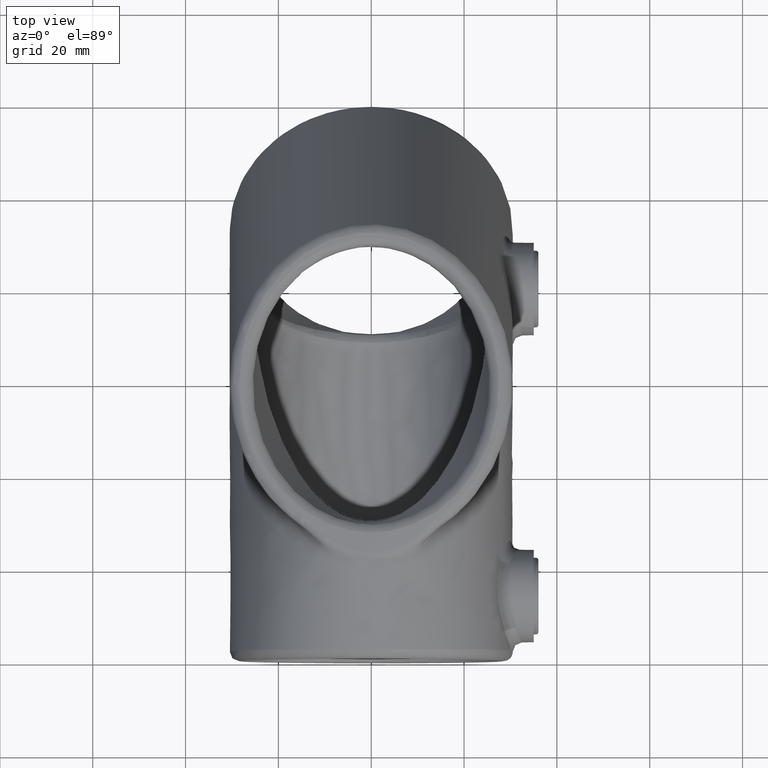
[diagram: clean part render]
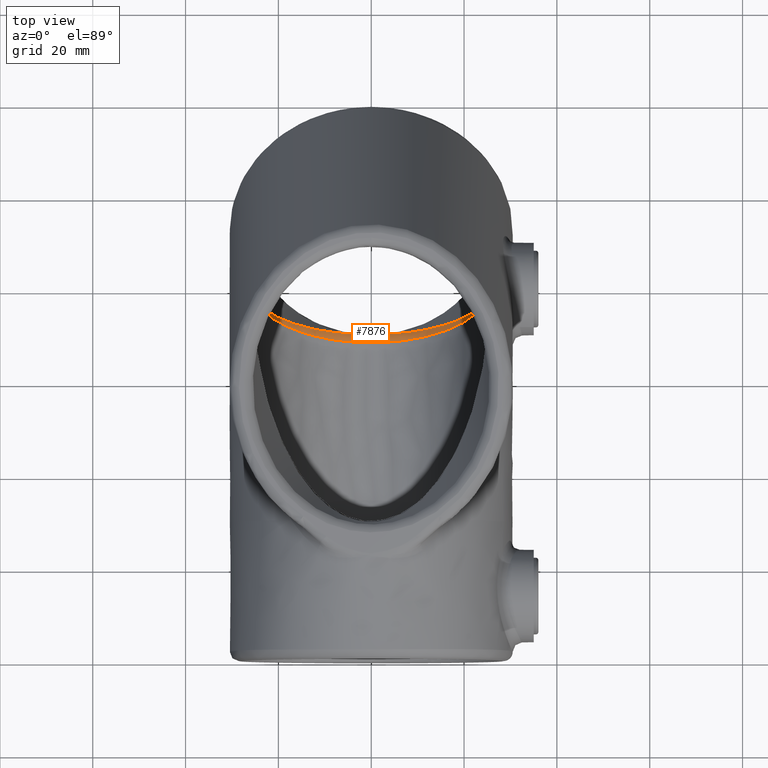
[diagram: same view with one face highlighted and labeled with its STEP entity id]
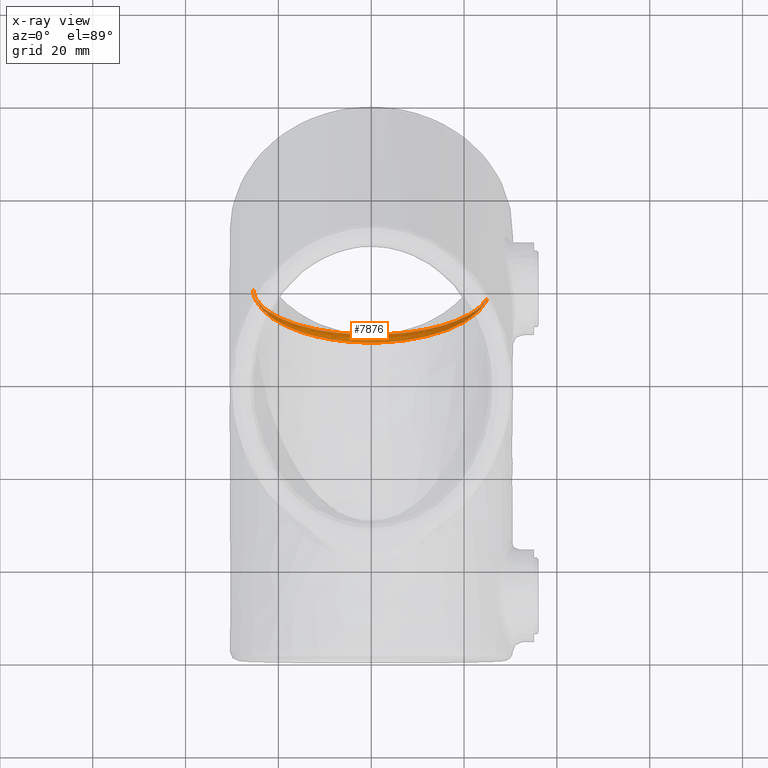
[diagram: x-ray of the same camera — body ghosted, the highlighted face saturated]
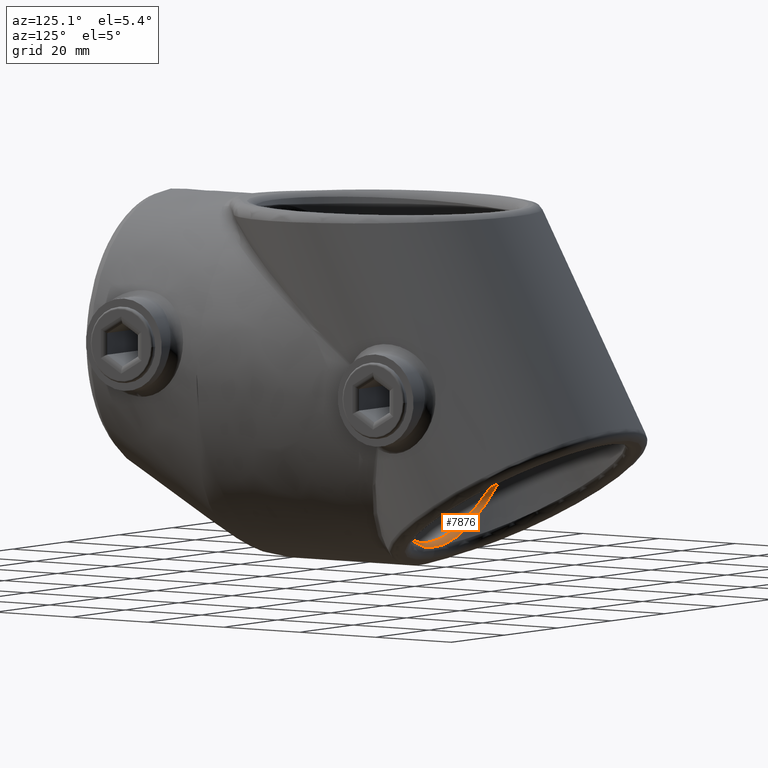
[diagram: same view with one face highlighted and labeled with its STEP entity id]
A machine part, top view. The second image highlights one B-rep face of the part: STEP entity #7876.
The next image is the same camera in x-ray: the body ghosted, the highlighted face saturated — about 6% of this face is hidden behind the body in this view.
A second angle (auxiliary view) of the same face is appended — the face is thin or edge-on in the first view.
In plain terms, the highlighted face is a freeform B-spline surface patch.
Its self-contained STEP definition (entity closure, byte-faithful):
#3 = CARTESIAN_POINT ( 'NONE',  ( 22.58121639640015488, 75.24018832099129384, -54.75525968631944096 ) ) ;
#14 = ORIENTED_EDGE ( 'NONE', *, *, #3636, .F. ) ;
#25 = CARTESIAN_POINT ( 'NONE',  ( -24.36436535150249583, 77.35913211490264985, -49.02889481556089635 ) ) ;
#56 = CARTESIAN_POINT ( 'NONE',  ( -24.38184807704450918, 77.10431051334707320, -48.95295193332019323 ) ) ;
#144 = CARTESIAN_POINT ( 'NONE',  ( -1.947169209758841113, 69.35995465113772696, -72.90505372227812586 ) ) ;
#153 = CARTESIAN_POINT ( 'NONE',  ( 0.6100246382884233487, 70.98978111656532519, -73.88626713952150737 ) ) ;
#175 = CARTESIAN_POINT ( 'NONE',  ( 6.675521697661412901, 71.37364669932598815, -72.78712857320317653 ) ) ;
#237 = CARTESIAN_POINT ( 'NONE',  ( 1.222344344010739325, 71.00395374831892070, -73.86503261217285399 ) ) ;
#262 = CARTESIAN_POINT ( 'NONE',  ( 22.89841451262963901, 76.20655320759085782, -54.38553463002921262 ) ) ;
#318 = CARTESIAN_POINT ( 'NONE',  ( 22.11504590576384999, 75.36577114824225987, -55.86472681183661848 ) ) ;
#322 = CARTESIAN_POINT ( 'NONE',  ( 23.14863449113720506, 76.39758286068226312, -53.66530873302413340 ) ) ;
#330 = CARTESIAN_POINT ( 'NONE',  ( 3.652023035714216270, 71.15436732206202919, -73.63651416379987324 ) ) ;
#351 = CARTESIAN_POINT ( 'NONE',  ( 17.20485221211358251, 73.00341594791015609, -64.04838910481251446 ) ) ;
#356 = CARTESIAN_POINT ( 'NONE',  ( -25.49999999999999645, 80.29829407782806072, -38.99999999999994316 ) ) ;
#361 = CARTESIAN_POINT ( 'NONE',  ( 24.90587214324878929, 77.96863304272331163, -46.26039285862093209 ) ) ;
#385 = CARTESIAN_POINT ( 'NONE',  ( 13.75194645250684999, 72.47820369677511110, -68.53515800741925545 ) ) ;
#414 = CARTESIAN_POINT ( 'NONE',  ( 17.31348103516615211, 72.28882902527541887, -63.91386295903275538 ) ) ;
#442 = CARTESIAN_POINT ( 'NONE',  ( 24.36861599355610153, 77.51550226748774719, -49.45516375577724943 ) ) ;
#477 = CARTESIAN_POINT ( 'NONE',  ( 2.968164713017211742, 69.39878908746389641, -72.78726015414369499 ) ) ;
#505 = CARTESIAN_POINT ( 'NONE',  ( 0.2701683234118203436, 70.47820838024550483, -73.01866182966917052 ) ) ;
#535 = CARTESIAN_POINT ( 'NONE',  ( -13.97484020293944873, 72.55261667835988248, -68.25131022408739057 ) ) ;
#566 = CARTESIAN_POINT ( 'NONE',  ( 8.845875741114355151, 71.06942923792198030, -70.88339112474533010 ) ) ;
#588 = CARTESIAN_POINT ( 'NONE',  ( -21.20653426436955158, 74.25602303656903302, -57.81434387777611050 ) ) ;
#596 = CARTESIAN_POINT ( 'NONE',  ( -10.96756580293044969, 71.94530800863633146, -70.58202024684642595 ) ) ;
#599 = CARTESIAN_POINT ( 'NONE',  ( -9.279989084185977788, 70.10189507112878005, -70.64526059665190871 ) ) ;
#624 = CARTESIAN_POINT ( 'NONE',  ( -5.623321931333479462, 69.57765207385848782, -72.24417434827853413 ) ) ;
#634 = CARTESIAN_POINT ( 'NONE',  ( -16.25493231877847577, 72.68773891115604613, -65.15299319028781611 ) ) ;
#659 = CARTESIAN_POINT ( 'NONE',  ( -18.48061508322096458, 72.76424318104858457, -62.44304037305183641 ) ) ;
#665 = CARTESIAN_POINT ( 'NONE',  ( -18.49734091706215722, 73.89158619260497574, -63.14391720063301960 ) ) ;
#670 = CARTESIAN_POINT ( 'NONE',  ( -24.60542226862977699, 77.84604415767738317, -48.21244688254019906 ) ) ;
#682 = CARTESIAN_POINT ( 'NONE',  ( 24.23022378654544084, 76.86450049158686681, -49.70003233663356923 ) ) ;
#694 = CARTESIAN_POINT ( 'NONE',  ( -23.28469828544911735, 75.82949940753640306, -52.92218614671244836 ) ) ;
#707 = CARTESIAN_POINT ( 'NONE',  ( -21.09467144445599374, 75.07771219020403919, -58.64856026612391560 ) ) ;
#741 = CARTESIAN_POINT ( 'NONE',  ( -23.11642347125272678, 76.07794826360931495, -53.41588255201841662 ) ) ;
#770 = CARTESIAN_POINT ( 'NONE',  ( -24.91300201651162993, 77.96369705506940306, -46.27582120535466004 ) ) ;
#926 = CARTESIAN_POINT ( 'NONE',  ( 9.488102775605041117, 71.71052817011643299, -71.48608127014323088 ) ) ;
#960 = ORIENTED_EDGE ( 'NONE', *, *, #3135, .F. ) ;
#981 = FACE_OUTER_BOUND ( 'NONE', #5347, .T. ) ;
#987 = CARTESIAN_POINT ( 'NONE',  ( 22.08933395456381632, 75.64070796388675433, -56.52034615322701683 ) ) ;
#1016 = CARTESIAN_POINT ( 'NONE',  ( 24.38746978340046567, 77.55290390689188484, -49.31469285928417179 ) ) ;
#1046 = CARTESIAN_POINT ( 'NONE',  ( 24.98827324766854119, 78.13453925128949606, -45.74346670718394847 ) ) ;
#1080 = CARTESIAN_POINT ( 'NONE',  ( 23.27355916427231364, 76.23874650187609348, -52.86540305033394560 ) ) ;
#1106 = CARTESIAN_POINT ( 'NONE',  ( 22.68043899571690147, 75.32832149020767076, -54.48105871817234913 ) ) ;
#1110 = CARTESIAN_POINT ( 'NONE',  ( 21.47446972008167165, 75.27414699323689717, -57.90524636522083313 ) ) ;
#1142 = CARTESIAN_POINT ( 'NONE',  ( 24.71512622740784337, 77.56260804437228273, -47.52552346080146606 ) ) ;
#1176 = CARTESIAN_POINT ( 'NONE',  ( 11.19556131808074362, 71.44815553485565829, -69.52975261503965498 ) ) ;
#1207 = CARTESIAN_POINT ( 'NONE',  ( -9.153354244819674079, 71.11738877731944797, -70.71184285386405577 ) ) ;
#1234 = CARTESIAN_POINT ( 'NONE',  ( -2.478671180937555452, 71.10221689240216847, -73.83881263809927020 ) ) ;
#1266 = CARTESIAN_POINT ( 'NONE',  ( -8.872564781467808359, 70.03345506781359120, -70.85442419421386262 ) ) ;
#1288 = CARTESIAN_POINT ( 'NONE',  ( -14.94186738186023788, 71.44739340413248385, -66.51260589764540043 ) ) ;
#1301 = CARTESIAN_POINT ( 'NONE',  ( 6.385232982297417870, 70.78050994303880827, -71.92302294993109513 ) ) ;
#1320 = CARTESIAN_POINT ( 'NONE',  ( -21.40419090190066953, 74.38488126835021319, -57.41402323160211552 ) ) ;
#1332 = CARTESIAN_POINT ( 'NONE',  ( -25.39232300535163489, 79.31093693001432143, -42.70749295904786180 ) ) ;
#1354 = CARTESIAN_POINT ( 'NONE',  ( -25.28986226715555219, 78.87871348826845974, -43.42451259989238821 ) ) ;
#1359 = CARTESIAN_POINT ( 'NONE',  ( -16.80384495696155867, 73.32276214989660446, -65.30944055137290150 ) ) ;
#1366 = CARTESIAN_POINT ( 'NONE',  ( -15.75770533164856246, 71.71412220294979534, -65.68973685546784225 ) ) ;
#1399 = CARTESIAN_POINT ( 'NONE',  ( -21.99087857809904278, 75.59163127313060215, -56.70610274300048559 ) ) ;
#1404 = CARTESIAN_POINT ( 'NONE',  ( -25.49999999999999645, 80.29829407782806072, -38.99999999999995737 ) ) ;
#1426 = CARTESIAN_POINT ( 'NONE',  ( -20.79507738365004599, 73.99979384274023175, -58.61012926499299880 ) ) ;
#1438 = CARTESIAN_POINT ( 'NONE',  ( -21.71776665122503047, 75.10160987001462729, -56.77398842270933699 ) ) ;
#1452 = B_SPLINE_CURVE_WITH_KNOTS ( 'NONE', 3,
 ( #5945, #7360, #4523, #175, #6760, #3099, #926, #7483, #1667, #3859, #8879, #4581, #6035, #3162, #5324, #5413, #3953, #1110, #987, #262, #322, #3925, #7582, #1016, #6072, #3189 ),
 .UNSPECIFIED., .F., .F.,
 ( 4, 2, 2, 2, 2, 2, 2, 2, 2, 2, 2, 2, 4 ),
 ( 0.05250155235645520557, 0.05485055837748700758, 0.05719956439851881652, 0.05954857041955062547, 0.06189757644058243441, 0.06659558848264603148, 0.06894459450367783349, 0.07129360052470962161, 0.07599161256677328113, 0.08068962460883694066, 0.08303863062986877042, 0.08538763665090060018, 0.09008564869296424582 ),
 .UNSPECIFIED. ) ;
#1471 = CARTESIAN_POINT ( 'NONE',  ( -19.15505526986493834, 73.08222914416309379, -61.45766166862151891 ) ) ;
#1509 = CARTESIAN_POINT ( 'NONE',  ( -3.049522193960292782, 71.10089547448396274, -73.71827199343026393 ) ) ;
#1572 = CARTESIAN_POINT ( 'NONE',  ( 3.612723905369476185, 69.43577893420091129, -72.67507190423903296 ) ) ;
#1667 = CARTESIAN_POINT ( 'NONE',  ( 11.47393045232039555, 72.03176453876621110, -70.24938358839466446 ) ) ;
#1757 = CARTESIAN_POINT ( 'NONE',  ( 24.31324362160927777, 77.25854100056396589, -49.37200413246505093 ) ) ;
#1788 = CARTESIAN_POINT ( 'NONE',  ( 18.93679761915127457, 72.99780673406972653, -61.71871900510505782 ) ) ;
#1813 = CARTESIAN_POINT ( 'NONE',  ( 22.29421733063485789, 75.48845431848967280, -55.44263719053173389 ) ) ;
#1847 = CARTESIAN_POINT ( 'NONE',  ( 18.58667645417779113, 73.94426602436816154, -62.94476250081918067 ) ) ;
#1881 = CARTESIAN_POINT ( 'NONE',  ( 18.84513298144756632, 73.63298950510153418, -61.85464117502643688 ) ) ;
#1917 = CARTESIAN_POINT ( 'NONE',  ( -13.62746628263399629, 72.47220421442916916, -68.55930361127867911 ) ) ;
#1954 = CARTESIAN_POINT ( 'NONE',  ( 3.799842541745932945, 70.58344501086753553, -72.63621558869091643 ) ) ;
#1987 = CARTESIAN_POINT ( 'NONE',  ( -2.417544757856491699, 69.37808306653005275, -72.85006445649676721 ) ) ;
#2018 = CARTESIAN_POINT ( 'NONE',  ( 1.149178466404481735, 70.48723189137440670, -72.98580759722253219 ) ) ;
#2038 = CARTESIAN_POINT ( 'NONE',  ( -25.49794839773879218, 80.15610806098254670, -39.44317938748751828 ) ) ;
#2048 = CARTESIAN_POINT ( 'NONE',  ( 8.973886907417929493, 70.04521563718857635, -70.81870372478462627 ) ) ;
#2060 = CARTESIAN_POINT ( 'NONE',  ( 14.82351427099665209, 71.39152617907386400, -66.68570757633166579 ) ) ;
#2068 = CARTESIAN_POINT ( 'NONE',  ( -25.36862898788332998, 79.16186091001654290, -42.54205928378921442 ) ) ;
#2074 = CARTESIAN_POINT ( 'NONE',  ( -25.50000000000000711, 80.05590271631743349, -39.91017129015595089 ) ) ;
#2076 = CARTESIAN_POINT ( 'NONE',  ( 24.90587214324878929, 77.96863304272331163, -46.26039285862093209 ) ) ;
#2079 = CARTESIAN_POINT ( 'NONE',  ( -25.38879444970052646, 79.12694403554658606, -42.65098259201192121 ) ) ;
#2101 = CARTESIAN_POINT ( 'NONE',  ( -16.20152522740047374, 71.86893673309151609, -65.21171297560889002 ) ) ;
#2113 = CARTESIAN_POINT ( 'NONE',  ( -23.22388508724809597, 76.42841779595747198, -53.54831218838145190 ) ) ;
#2140 = CARTESIAN_POINT ( 'NONE',  ( -20.58092421492675683, 73.87223855928772309, -59.00616569705063341 ) ) ;
#2161 = CARTESIAN_POINT ( 'NONE',  ( 23.19923370339355273, 75.77823283100916285, -53.08140511975833675 ) ) ;
#2182 = CARTESIAN_POINT ( 'NONE',  ( -21.77363045254974239, 74.63013461175248153, -56.65202112188305250 ) ) ;
#2218 = CARTESIAN_POINT ( 'NONE',  ( -13.63621272760182990, 71.96871142456440396, -67.68354683729262433 ) ) ;
#2262 = B_SPLINE_CURVE_WITH_KNOTS ( 'NONE', 3,
 ( #7775, #4341, #682, #6496, #2161, #3, #4239, #5063, #8519, #4206, #4933, #5644, #6396, #2060, #3518, #2290, #4406, #5121, #4434, #3770, #3010, #1572, #7301, #4465, #5178, #3040, #144, #5767, #3527, #624, #9250, #8625, #4999, #4940, #1288, #2101, #2895, #659, #5730, #2140, #1426, #588, #1320, #6407, #6440, #694, #7909, #5655, #6473, #6374, #5692, #1354, #2068, #2832, #2865, #7880, #4908, #2038, #5040, #7116, #5623 ),
 .UNSPECIFIED., .F., .F.,
 ( 4, 2, 2, 2, 2, 2, 2, 2, 2, 2, 2, 2, 2, 2, 2, 2, 2, 2, 2, 2, 2, 2, 2, 2, 2, 2, 2, 2, 1, 2, 4 ),
 ( 0.007569624944995173750, 0.01308172570860278647, 0.01583777609040659326, 0.01859382647221040005, 0.02410592723581800670, 0.02686197761762181349, 0.02961802799942562028, 0.03513012876303323734, 0.03788617914483703025, 0.04064222952664083011, 0.04339827990844462996, 0.04615433029024842287, 0.04891038067205222273, 0.05028840586295411919, 0.05166643105385601564, 0.05717853181746361535, 0.06269063258107121506, 0.06544668296287500797, 0.06820273334467881476, 0.07371483410828642835, 0.07509285929918832481, 0.07647088449009022126, 0.07922693487189401418, 0.08473903563550158613, 0.08749508601730537904, 0.09025113639910917196, 0.09300718678091295100, 0.09438521197181486133, 0.09507422456726580262, 0.09541873086499128020, 0.09576323716271677167 ),
 .UNSPECIFIED. ) ;
#2290 = CARTESIAN_POINT ( 'NONE',  ( 11.25077091554222086, 70.47829710950689730, -69.49299550576144213 ) ) ;
#2338 = CARTESIAN_POINT ( 'NONE',  ( 3.049522193909566692, 71.10089547413532785, -73.71827199284209087 ) ) ;
#2481 = CARTESIAN_POINT ( 'NONE',  ( 24.90588880252834869, 78.21368011657718000, -46.33561119472766876 ) ) ;
#2497 = CARTESIAN_POINT ( 'NONE',  ( 22.25782570374855851, 75.76615114455123035, -56.04730793816356282 ) ) ;
#2554 = CARTESIAN_POINT ( 'NONE',  ( 16.91485242461063621, 73.35771836001826784, -65.17624302442088435 ) ) ;
#2585 = CARTESIAN_POINT ( 'NONE',  ( 18.32083612700048292, 73.41869409461865814, -62.60009216446224656 ) ) ;
#2644 = CARTESIAN_POINT ( 'NONE',  ( 3.042901346655915162, 71.11960781533637999, -73.77132199167930082 ) ) ;
#2665 = ORIENTED_EDGE ( 'NONE', *, *, #7065, .F. ) ;
#2676 = CARTESIAN_POINT ( 'NONE',  ( -10.07686354925038508, 70.24579798573850553, -70.20504759444079923 ) ) ;
#2704 = CARTESIAN_POINT ( 'NONE',  ( -10.66728905351962453, 71.89490465039276046, -70.77597436946618359 ) ) ;
#2734 = CARTESIAN_POINT ( 'NONE',  ( -24.95080440012958789, 78.36440507070257411, -46.26374955048017767 ) ) ;
#2740 = CARTESIAN_POINT ( 'NONE',  ( 5.767867518358611001, 71.29027527679461684, -73.10979090563604643 ) ) ;
#2774 = CARTESIAN_POINT ( 'NONE',  ( -6.817961756486037750, 69.71443715304829425, -71.82857066898249343 ) ) ;
#2809 = CARTESIAN_POINT ( 'NONE',  ( -23.76537079493425253, 76.89378978174936208, -51.79523465531981685 ) ) ;
#2832 = CARTESIAN_POINT ( 'NONE',  ( -25.44743596548212494, 79.58744861769761769, -41.21561180958967441 ) ) ;
#2837 = CARTESIAN_POINT ( 'NONE',  ( -12.85375073155741887, 72.29901036449879825, -69.22299328547244102 ) ) ;
#2842 = CARTESIAN_POINT ( 'NONE',  ( -15.95671236838632545, 73.06627056337855208, -66.28759204109377379 ) ) ;
#2857 = VERTEX_POINT ( 'NONE', #5837 ) ;
#2865 = CARTESIAN_POINT ( 'NONE',  ( -25.46714016102752609, 79.72945577057078026, -40.77300086175085880 ) ) ;
#2895 = CARTESIAN_POINT ( 'NONE',  ( -16.79541440563683352, 72.08752488976955419, -64.53630018193901208 ) ) ;
#2908 = CARTESIAN_POINT ( 'NONE',  ( -24.41576217797860693, 77.60617885525999782, -49.11456459178825185 ) ) ;
#2941 = CARTESIAN_POINT ( 'NONE',  ( -18.00877339124215482, 73.27785242951240718, -63.08890691446918453 ) ) ;
#3010 = CARTESIAN_POINT ( 'NONE',  ( 5.433628725803239412, 69.58171781422518620, -72.23162674064204225 ) ) ;
#3040 = CARTESIAN_POINT ( 'NONE',  ( -1.484223066099949140, 69.34604426868432370, -72.94723079108401009 ) ) ;
#3093 = B_SPLINE_CURVE_WITH_KNOTS ( 'NONE', 3,
 ( #4881, #2074, #7852, #4253, #7061, #4915, #2734, #4975, #3569, #8536, #9255, #7122, #1399, #5700, #7787, #4945, #665, #1359, #6446, #7155, #3466, #2837, #8600, #596, #8471, #9327, #5738, #6478, #5662, #7029 ),
 .UNSPECIFIED., .F., .F.,
 ( 4, 2, 2, 2, 2, 2, 2, 2, 2, 2, 2, 2, 2, 2, 4 ),
 ( -4.722866202610422732E-05, 0.002778454696853119125, 0.005604138055732343048, 0.008429821414611566102, 0.01125550477349079002, 0.01690687149124922573, 0.01973255485012845659, 0.02255823820900768398, 0.02820960492676613876, 0.03103528828564537309, 0.03386097164452460395, 0.03668665500340383828, 0.03809949668284346586, 0.03951233836228309343, 0.04516370508004163148 ),
 .UNSPECIFIED. ) ;
#3099 = CARTESIAN_POINT ( 'NONE',  ( 8.803485369687606976, 71.61628650233085125, -71.84962918470695570 ) ) ;
#3135 = EDGE_CURVE ( 'NONE', #4884, #9074, #2262, .T. ) ;
#3136 = CARTESIAN_POINT ( 'NONE',  ( -1.224204032535390008, 71.00402165904495178, -73.86493034739356744 ) ) ;
#3162 = CARTESIAN_POINT ( 'NONE',  ( 17.53204378512575801, 73.56366874077694717, -64.39208487124842861 ) ) ;
#3189 = CARTESIAN_POINT ( 'NONE',  ( 24.92534608071600388, 78.33660657370674585, -46.36833815294732375 ) ) ;
#3192 =( BOUNDED_SURFACE ( )  B_SPLINE_SURFACE ( 3, 2, ( 
 ( #8052, #3737, #1046 ),
 ( #7553, #7607, #1142 ),
 ( #442, #1757, #6128 ),
 ( #7578, #3977, #3311 ),
 ( #6222, #1080, #6908 ),
 ( #8379, #4034, #6162 ),
 ( #4674, #4065, #1106 ),
 ( #5386, #1813, #9096 ),
 ( #2497, #318, #3249 ),
 ( #6937, #4796, #6192 ),
 ( #4764, #6878, #5502 ),
 ( #9007, #1881, #1788 ),
 ( #1847, #2585, #8349 ),
 ( #4706, #351, #414 ),
 ( #2554, #3275, #7634 ),
 ( #5473, #5409, #8317 ),
 ( #385, #4007, #3218 ),
 ( #4737, #1176, #6816 ),
 ( #8255, #3949, #8972 ),
 ( #5634, #566, #2048 ),
 ( #8477, #4157, #4098 ),
 ( #5565, #1301, #6352 ),
 ( #2740, #6323, #7003 ),
 ( #6384, #1954, #7729 ),
 ( #2644, #7825, #477 ),
 ( #4194, #2018, #7067 ),
 ( #3473, #505, #3504 ),
 ( #9200, #8540, #8505 ),
 ( #8443, #9134, #4225 ),
 ( #1234, #5530, #1987 ),
 ( #7697, #6972, #4827 ),
 ( #7098, #9260, #3374 ),
 ( #9229, #7035, #2774 ),
 ( #7792, #5600, #1266 ),
 ( #4949, #1207, #599 ),
 ( #8409, #6294, #2676 ),
 ( #2704, #3408, #5667 ),
 ( #7763, #3442, #4920 ),
 ( #6258, #4126, #9168 ),
 ( #1917, #4854, #4885 ),
 ( #535, #2218, #3638 ),
 ( #4259, #7856, #5778 ),
 ( #4978, #9332, #4327 ),
 ( #2842, #8668, #1366 ),
 ( #7983, #634, #7254 ),
 ( #8635, #2941, #5052 ),
 ( #3669, #4361, #1471 ),
 ( #9295, #7227, #5013 ),
 ( #707, #8703, #9360 ),
 ( #8570, #1438, #2182 ),
 ( #6450, #3574, #5704 ),
 ( #2113, #741, #6513 ),
 ( #2809, #3607, #4396 ),
 ( #2908, #25, #56 ),
 ( #670, #7950, #5084 ),
 ( #3539, #5110, #770 ),
 ( #7891, #5809, #6546 ),
 ( #1332, #6420, #2079 ),
 ( #7125, #7159, #8604 ),
 ( #4295, #5742, #1404 ) ),
 .UNSPECIFIED., .F., .F., .F. ) 
 B_SPLINE_SURFACE_WITH_KNOTS ( ( 4, 2, 2, 2, 2, 2, 2, 2, 2, 2, 2, 2, 2, 2, 2, 2, 2, 2, 2, 2, 2, 2, 2, 2, 2, 2, 2, 2, 2, 4 ),
 ( 3, 3 ),
 ( 0.007308159360725687871, 0.01321646211490638649, 0.01617061349199673537, 0.01764768918054190894, 0.01912476486908708598, 0.02503306762326778373, 0.02798721900035813434, 0.03094137037744848495, 0.03684967313162918617, 0.03980382450871954025, 0.04275797588580988740, 0.04571212726290023454, 0.04866627863999058168, 0.05162043001708092882, 0.05309750570562610239, 0.05457458139417128290, 0.06048288414835198412, 0.06195995983689715769, 0.06343703552544233126, 0.06639118690253267840, 0.06786826259107785198, 0.06934533827962302555, 0.07229948965671337269, 0.07820779241089408085, 0.08116194378798444187, 0.08411609516507478901, 0.09002439791925548329, 0.09297854929634583043, 0.09593270067343617757, 0.1018410034276168719 ),
 ( 0.000000000000000000, 1.000000000000000000 ),
 .UNSPECIFIED. ) 
 GEOMETRIC_REPRESENTATION_ITEM ( )  RATIONAL_B_SPLINE_SURFACE ( (
 ( 1.000000000000000000, 0.9960171085653912737, 1.000000000000000000),
 ( 1.000000000000000000, 0.9938927338412815171, 1.000000000000000000),
 ( 1.000000000000000000, 0.9909281118348461925, 1.000000000000000000),
 ( 1.000000000000000000, 0.9851635900242674548, 1.000000000000000000),
 ( 1.000000000000000000, 0.9830221301995304417, 1.000000000000000000),
 ( 1.000000000000000000, 0.9794671449479029901, 1.000000000000000000),
 ( 1.000000000000000000, 0.9782229356591641833, 1.000000000000000000),
 ( 1.000000000000000000, 0.9756362785766016232, 1.000000000000000000),
 ( 1.000000000000000000, 0.9742923823184512777, 1.000000000000000000),
 ( 1.000000000000000000, 0.9673231970086617615, 1.000000000000000000),
 ( 1.000000000000000000, 0.9609465813214567165, 1.000000000000000000),
 ( 1.000000000000000000, 0.9502546272828125140, 1.000000000000000000),
 ( 1.000000000000000000, 0.9465031001849445458, 1.000000000000000000),
 ( 1.000000000000000000, 0.9386501495926581340, 1.000000000000000000),
 ( 1.000000000000000000, 0.9345374381174182954, 1.000000000000000000),
 ( 1.000000000000000000, 0.9219976401755605178, 1.000000000000000000),
 ( 1.000000000000000000, 0.9132752193378772532, 1.000000000000000000),
 ( 1.000000000000000000, 0.9004717097835882589, 1.000000000000000000),
 ( 1.000000000000000000, 0.8962347682165656693, 1.000000000000000000),
 ( 1.000000000000000000, 0.8882992257046440354, 1.000000000000000000),
 ( 1.000000000000000000, 0.8845824341467735108, 1.000000000000000000),
 ( 1.000000000000000000, 0.8779239993656887675, 1.000000000000000000),
 ( 1.000000000000000000, 0.8749825586284787349, 1.000000000000000000),
 ( 1.000000000000000000, 0.8701962454967648863, 1.000000000000000000),
 ( 1.000000000000000000, 0.8683826857402018318, 1.000000000000000000),
 ( 1.000000000000000000, 0.8661964487506165211, 1.000000000000000000),
 ( 1.000000000000000000, 0.8658095760124155937, 1.000000000000000000),
 ( 1.000000000000000000, 0.8663053358536957349, 1.000000000000000000),
 ( 1.000000000000000000, 0.8666492547949879999, 1.000000000000000000),
 ( 1.000000000000000000, 0.8676891184980439764, 1.000000000000000000),
 ( 1.000000000000000000, 0.8683874326431078039, 1.000000000000000000),
 ( 1.000000000000000000, 0.8727062508592616785, 1.000000000000000000),
 ( 1.000000000000000000, 0.8786925766755306899, 1.000000000000000000),
 ( 1.000000000000000000, 0.8879117050568747782, 1.000000000000000000),
 ( 1.000000000000000000, 0.8898474492762573629, 1.000000000000000000),
 ( 1.000000000000000000, 0.8938130176723526610, 1.000000000000000000),
 ( 1.000000000000000000, 0.8958475912486145720, 1.000000000000000000),
 ( 1.000000000000000000, 0.9020581931319521241, 1.000000000000000000),
 ( 1.000000000000000000, 0.9063391142318872884, 1.000000000000000000),
 ( 1.000000000000000000, 0.9128194229366384249, 1.000000000000000000),
 ( 1.000000000000000000, 0.9149898802575402446, 1.000000000000000000),
 ( 1.000000000000000000, 0.9193316980709125286, 1.000000000000000000),
 ( 1.000000000000000000, 0.9215029756307853148, 1.000000000000000000),
 ( 1.000000000000000000, 0.9279272608466058170, 1.000000000000000000),
 ( 1.000000000000000000, 0.9321127478776105590, 1.000000000000000000),
 ( 1.000000000000000000, 0.9442601981478252471, 1.000000000000000000),
 ( 1.000000000000000000, 0.9518071241553230921, 1.000000000000000000),
 ( 1.000000000000000000, 0.9620551984230383269, 1.000000000000000000),
 ( 1.000000000000000000, 0.9653002214750795451, 1.000000000000000000),
 ( 1.000000000000000000, 0.9713229087966314124, 1.000000000000000000),
 ( 1.000000000000000000, 0.9741143171408793711, 1.000000000000000000),
 ( 1.000000000000000000, 0.9818423276791148346, 1.000000000000000000),
 ( 1.000000000000000000, 0.9861348064040710293, 1.000000000000000000),
 ( 1.000000000000000000, 0.9913113333046041920, 1.000000000000000000),
 ( 1.000000000000000000, 0.9928260149881116270, 1.000000000000000000),
 ( 1.000000000000000000, 0.9954315572787162392, 1.000000000000000000),
 ( 1.000000000000000000, 0.9965231728652912402, 1.000000000000000000),
 ( 1.000000000000000000, 0.9991324485003199030, 1.000000000000000000),
 ( 1.000000000000000000, 1.000000000000000000, 1.000000000000000000),
 ( 1.000000000000000000, 1.000000000000000000, 1.000000000000000000) ) ) 
 REPRESENTATION_ITEM ( '' )  SURFACE ( )  );
#3218 = CARTESIAN_POINT ( 'NONE',  ( 13.53997297065101790, 71.01513182544424296, -67.84482594557856316 ) ) ;
#3249 = CARTESIAN_POINT ( 'NONE',  ( 22.16451665557691086, 74.92059757040138379, -55.74899317028063450 ) ) ;
#3275 = CARTESIAN_POINT ( 'NONE',  ( 16.61056450922607652, 72.80206616254370999, -64.75257613863375639 ) ) ;
#3311 = CARTESIAN_POINT ( 'NONE',  ( 23.58564893404010832, 76.15802755766668497, -51.89937786681670673 ) ) ;
#3374 = CARTESIAN_POINT ( 'NONE',  ( -5.107615113201586787, 69.52979773105847983, -72.38959041237488634 ) ) ;
#3408 = CARTESIAN_POINT ( 'NONE',  ( -10.33590048768746961, 71.30152541902270968, -70.05316886495704409 ) ) ;
#3442 = CARTESIAN_POINT ( 'NONE',  ( -11.48043960300457833, 71.50151910502761154, -69.33985253694731909 ) ) ;
#3466 = CARTESIAN_POINT ( 'NONE',  ( -14.26075992085537614, 72.61650517421475115, -68.00648311674342494 ) ) ;
#3473 = CARTESIAN_POINT ( 'NONE',  ( 0.2817927052790797360, 71.05532765065296985, -74.02081689228684525 ) ) ;
#3504 = CARTESIAN_POINT ( 'NONE',  ( 0.2748002779996018274, 69.32225444551517057, -73.01935586647404364 ) ) ;
#3518 = CARTESIAN_POINT ( 'NONE',  ( 13.48059598605783727, 70.99855123472649154, -67.89584987121550341 ) ) ;
#3527 = CARTESIAN_POINT ( 'NONE',  ( -3.337490745990619345, 69.42454305475799003, -72.70909720559907896 ) ) ;
#3539 = CARTESIAN_POINT ( 'NONE',  ( -24.93111981072080141, 78.33047223402540737, -46.39127774973287899 ) ) ;
#3569 = CARTESIAN_POINT ( 'NONE',  ( -24.45253031691250101, 77.65118847787194056, -48.94526649298538956 ) ) ;
#3574 = CARTESIAN_POINT ( 'NONE',  ( -22.09102023150403227, 75.34366081609483956, -55.94050024877729044 ) ) ;
#3588 = B_SPLINE_CURVE_WITH_KNOTS ( 'NONE', 3,
 ( #7258, #1509, #9355, #3136, #3836, #153, #237, #7396, #2338, #8180 ),
 .UNSPECIFIED., .F., .F.,
 ( 4, 2, 2, 2, 4 ),
 ( -2.358936472147541341E-05, 0.001807518767353146882, 0.003638626899427769082, 0.005469735031502391716, 0.007300843163577013482 ),
 .UNSPECIFIED. ) ;
#3607 = CARTESIAN_POINT ( 'NONE',  ( -23.68356061117870226, 76.58323662512567864, -51.68363044208743418 ) ) ;
#3636 = EDGE_CURVE ( 'NONE', #7058, #7589, #1452, .T. ) ;
#3638 = CARTESIAN_POINT ( 'NONE',  ( -13.76627046231115159, 71.10356201771432438, -67.57164317241664264 ) ) ;
#3669 = CARTESIAN_POINT ( 'NONE',  ( -19.31192706469177622, 74.21780640307814281, -61.90520405651624003 ) ) ;
#3737 = CARTESIAN_POINT ( 'NONE',  ( 24.98039834529592795, 78.30586607370942431, -45.79484388473402845 ) ) ;
#3770 = CARTESIAN_POINT ( 'NONE',  ( 6.316179732279405101, 69.67498872008566480, -71.94791926898248846 ) ) ;
#3836 = CARTESIAN_POINT ( 'NONE',  ( -0.6140535904367373510, 70.98984296358415236, -73.88617424342416484 ) ) ;
#3859 = CARTESIAN_POINT ( 'NONE',  ( 13.33919655140715399, 72.39247146925610821, -68.86408185683467309 ) ) ;
#3925 = CARTESIAN_POINT ( 'NONE',  ( 23.60739114775950753, 76.78051437421163428, -52.22240334800606121 ) ) ;
#3949 = CARTESIAN_POINT ( 'NONE',  ( 10.42297800721591194, 71.31170219034414970, -70.01648903676300506 ) ) ;
#3953 = CARTESIAN_POINT ( 'NONE',  ( 20.08124729298621958, 74.56422015109409074, -60.59208978022839176 ) ) ;
#3977 = CARTESIAN_POINT ( 'NONE',  ( 23.55622797353840880, 76.49266644234694468, -51.99487102733005628 ) ) ;
#4007 = CARTESIAN_POINT ( 'NONE',  ( 13.39420537403125167, 71.88857053679460307, -67.96482561343756856 ) ) ;
#4034 = CARTESIAN_POINT ( 'NONE',  ( 22.80334404245965985, 75.86180856867169098, -54.15941530797934433 ) ) ;
#4065 = CARTESIAN_POINT ( 'NONE',  ( 22.63823340856926336, 75.73637646779013721, -54.59031340590566828 ) ) ;
#4098 = CARTESIAN_POINT ( 'NONE',  ( 8.161197599951179882, 69.91706214027549038, -71.20998726603077955 ) ) ;
#4126 = CARTESIAN_POINT ( 'NONE',  ( -12.21769547045801652, 71.64784014813773183, -68.81962720918104992 ) ) ;
#4157 = CARTESIAN_POINT ( 'NONE',  ( 8.039177051006713981, 70.96323217232877312, -71.26489159968930664 ) ) ;
#4194 = CARTESIAN_POINT ( 'NONE',  ( 1.202093087426132412, 71.06482244588852382, -73.98393805100248244 ) ) ;
#4206 = CARTESIAN_POINT ( 'NONE',  ( 18.86057139910201741, 72.96178559306527234, -61.83033970365737275 ) ) ;
#4225 = CARTESIAN_POINT ( 'NONE',  ( -1.519768629886324218, 69.34708618170003547, -72.94407492626751832 ) ) ;
#4239 = CARTESIAN_POINT ( 'NONE',  ( 22.24349390433965823, 74.97409209186443491, -55.58276477723145348 ) ) ;
#4253 = CARTESIAN_POINT ( 'NONE',  ( -25.36962048003635317, 79.32874475646224255, -42.64085382473886199 ) ) ;
#4259 = CARTESIAN_POINT ( 'NONE',  ( -14.65527654157650339, 72.71868375761158632, -67.61580150946835488 ) ) ;
#4295 = CARTESIAN_POINT ( 'NONE',  ( -25.49999999999999645, 80.29829407782806072, -38.99999999999995026 ) ) ;
#4327 = CARTESIAN_POINT ( 'NONE',  ( -14.78341166089991887, 71.40281532304753398, -66.64982109286390255 ) ) ;
#4341 = CARTESIAN_POINT ( 'NONE',  ( 24.61974550612092472, 77.41392874576865779, -47.98867714139557705 ) ) ;
#4361 = CARTESIAN_POINT ( 'NONE',  ( -19.06067580506642045, 73.70498922791556140, -61.60264453227462411 ) ) ;
#4396 = CARTESIAN_POINT ( 'NONE',  ( -23.71224423391686287, 76.25897587184475412, -51.58536808527412632 ) ) ;
#4406 = CARTESIAN_POINT ( 'NONE',  ( 10.46668620413091766, 70.31590799747105791, -69.99058538601300938 ) ) ;
#4434 = CARTESIAN_POINT ( 'NONE',  ( 8.027283393790213495, 69.89695190568137662, -71.27136160909022067 ) ) ;
#4465 = CARTESIAN_POINT ( 'NONE',  ( 0.8307529417544370354, 69.32714466208076942, -73.00454659316315542 ) ) ;
#4523 = CARTESIAN_POINT ( 'NONE',  ( 5.191815262975582712, 71.24693511710306382, -73.27764241754860564 ) ) ;
#4581 = CARTESIAN_POINT ( 'NONE',  ( 16.05854698202762521, 73.09778889923018141, -66.16742950137489743 ) ) ;
#4674 = CARTESIAN_POINT ( 'NONE',  ( 22.76087800032247443, 76.10964829790347608, -54.75111407420455834 ) ) ;
#4706 = CARTESIAN_POINT ( 'NONE',  ( 17.49667274757856461, 73.54992498851592586, -64.44428065844532227 ) ) ;
#4737 = CARTESIAN_POINT ( 'NONE',  ( 11.53761812558627398, 72.04163220533392575, -70.21134889360072862 ) ) ;
#4764 = CARTESIAN_POINT ( 'NONE',  ( 20.53090667381703227, 74.76870556404885804, -59.81707921993859856 ) ) ;
#4796 = CARTESIAN_POINT ( 'NONE',  ( 21.17937550501253341, 74.75636174158840674, -57.96309561469779226 ) ) ;
#4827 = CARTESIAN_POINT ( 'NONE',  ( -2.867838536552021367, 69.39898228007902503, -72.78666599999476716 ) ) ;
#4854 = CARTESIAN_POINT ( 'NONE',  ( -13.28707450394038503, 71.88636087192814728, -67.97476377397103420 ) ) ;
#4881 = CARTESIAN_POINT ( 'NONE',  ( -25.49999999999999645, 80.29829407782806072, -38.99999999999994316 ) ) ;
#4884 = VERTEX_POINT ( 'NONE', #2076 ) ;
#4885 = CARTESIAN_POINT ( 'NONE',  ( -13.41831310781979703, 71.00795940495079606, -67.86583875184777526 ) ) ;
#4908 = CARTESIAN_POINT ( 'NONE',  ( -25.49424989211484061, 80.04935548244827714, -39.77591595221734622 ) ) ;
#4915 = CARTESIAN_POINT ( 'NONE',  ( -25.08222256696757313, 78.60528411322054865, -45.35856788783669913 ) ) ;
#4920 = CARTESIAN_POINT ( 'NONE',  ( -11.61705776308131632, 70.55870062633411521, -69.24635105869029417 ) ) ;
#4933 = CARTESIAN_POINT ( 'NONE',  ( 18.34626326369604143, 72.72501207075877971, -62.56385179891435655 ) ) ;
#4940 = CARTESIAN_POINT ( 'NONE',  ( -14.27245215020053770, 71.24352253537105639, -67.14089591412626135 ) ) ;
#4945 = CARTESIAN_POINT ( 'NONE',  ( -19.49445037475289411, 74.29551316293581920, -61.61042150041155452 ) ) ;
#4949 = CARTESIAN_POINT ( 'NONE',  ( -9.469020917656967740, 71.71037605073408372, -71.48679290307761391 ) ) ;
#4975 = CARTESIAN_POINT ( 'NONE',  ( -24.63597221176815211, 77.88751030259255970, -48.05652438169714458 ) ) ;
#4978 = CARTESIAN_POINT ( 'NONE',  ( -14.98828390702481883, 72.80435394085465362, -67.28822854774176676 ) ) ;
#4999 = CARTESIAN_POINT ( 'NONE',  ( -12.17956779544590518, 70.66961262284831946, -68.90695576231912867 ) ) ;
#5013 = CARTESIAN_POINT ( 'NONE',  ( -20.54008775153310040, 73.84238751799171041, -59.09897428183096224 ) ) ;
#5040 = CARTESIAN_POINT ( 'NONE',  ( -25.49959143494661973, 80.22729491981134231, -39.22129725826541602 ) ) ;
#5052 = CARTESIAN_POINT ( 'NONE',  ( -18.11808907580268979, 72.60278532279188823, -62.94305200521972665 ) ) ;
#5063 = CARTESIAN_POINT ( 'NONE',  ( 21.14901645749606018, 74.19130208974762297, -58.01590739089923687 ) ) ;
#5084 = CARTESIAN_POINT ( 'NONE',  ( -24.57726764182049806, 77.38892306310711433, -48.06644020828046138 ) ) ;
#5110 = CARTESIAN_POINT ( 'NONE',  ( -24.90374826074360115, 78.14836544271260266, -46.33234121733335087 ) ) ;
#5121 = CARTESIAN_POINT ( 'NONE',  ( 8.856590199594876367, 70.02572774711940440, -70.87825247730717138 ) ) ;
#5178 = CARTESIAN_POINT ( 'NONE',  ( -0.09530279831495484799, 69.32121007088356635, -73.02252528150411592 ) ) ;
#5324 = CARTESIAN_POINT ( 'NONE',  ( 17.99389596789977119, 73.72582696603896579, -63.77516052275267100 ) ) ;
#5347 = EDGE_LOOP ( 'NONE', ( #2665, #14, #6480, #9035, #960 ) ) ;
#5386 = CARTESIAN_POINT ( 'NONE',  ( 22.43015785817006602, 75.87994596376518075, -55.61777966889077618 ) ) ;
#5409 = CARTESIAN_POINT ( 'NONE',  ( 14.74452856050501914, 72.22848366892351635, -66.76432676379967290 ) ) ;
#5413 = CARTESIAN_POINT ( 'NONE',  ( 19.30311626099956612, 74.22082518672935691, -61.89414907255212484 ) ) ;
#5473 = CARTESIAN_POINT ( 'NONE',  ( 15.08732521723624664, 72.80960178282474260, -67.26674829951289780 ) ) ;
#5502 = CARTESIAN_POINT ( 'NONE',  ( 20.39705322087747419, 73.73645057538938374, -59.42838375326825684 ) ) ;
#5530 = CARTESIAN_POINT ( 'NONE',  ( -2.373937175850318493, 70.52309133002758301, -72.85548205274508859 ) ) ;
#5565 = CARTESIAN_POINT ( 'NONE',  ( 6.641025376421435311, 71.36881195072022877, -72.80574062605275287 ) ) ;
#5600 = CARTESIAN_POINT ( 'NONE',  ( -8.748341319996244536, 71.06033724129633811, -70.91641411092621183 ) ) ;
#5623 = CARTESIAN_POINT ( 'NONE',  ( -25.49999999999999645, 80.29829407782806072, -38.99999999999994316 ) ) ;
#5634 = CARTESIAN_POINT ( 'NONE',  ( 9.160147977586168722, 71.66273202962527478, -71.67031753687781759 ) ) ;
#5644 = CARTESIAN_POINT ( 'NONE',  ( 17.24761962844624463, 72.26274285333755643, -63.99454082398127497 ) ) ;
#5655 = CARTESIAN_POINT ( 'NONE',  ( -24.44502476872943930, 77.19397332802331846, -48.67368221034481479 ) ) ;
#5662 = CARTESIAN_POINT ( 'NONE',  ( -5.509759582109416520, 71.25020589134719273, -73.26485151285191932 ) ) ;
#5667 = CARTESIAN_POINT ( 'NONE',  ( -10.46746427847686256, 70.32141895732473813, -69.97351633163314943 ) ) ;
#5680 = CARTESIAN_POINT ( 'NONE',  ( 24.92534608071600388, 78.33660657370674585, -46.36833815294732375 ) ) ;
#5692 = CARTESIAN_POINT ( 'NONE',  ( -25.07910250381069872, 78.31356437212555477, -45.18566660082311870 ) ) ;
#5700 = CARTESIAN_POINT ( 'NONE',  ( -21.23169545819518333, 75.15175094167240388, -58.36853768762273376 ) ) ;
#5704 = CARTESIAN_POINT ( 'NONE',  ( -22.14147452583862830, 74.89692960652688214, -55.82266891167838452 ) ) ;
#5730 = CARTESIAN_POINT ( 'NONE',  ( -19.47627631919649716, 73.24314496912492700, -60.95873771889992554 ) ) ;
#5738 = CARTESIAN_POINT ( 'NONE',  ( -9.360258914145360265, 71.69484490873601601, -71.54668187628922738 ) ) ;
#5742 = CARTESIAN_POINT ( 'NONE',  ( -25.49999999999999645, 80.29829407782806072, -38.99999999999995026 ) ) ;
#5767 = CARTESIAN_POINT ( 'NONE',  ( -2.873006402713059515, 69.39913385939172485, -72.78620029713501083 ) ) ;
#5778 = CARTESIAN_POINT ( 'NONE',  ( -14.44884589316415280, 71.30098075612308151, -66.96366349276404151 ) ) ;
#5809 = CARTESIAN_POINT ( 'NONE',  ( -25.04643025812535129, 78.41576298047240812, -45.41958437573438800 ) ) ;
#5837 = CARTESIAN_POINT ( 'NONE',  ( -3.652023035713687360, 71.15436732206200077, -73.63651416379997272 ) ) ;
#5945 = CARTESIAN_POINT ( 'NONE',  ( 3.652023035714216270, 71.15436732206202919, -73.63651416379987324 ) ) ;
#6035 = CARTESIAN_POINT ( 'NONE',  ( 16.56339811787200844, 73.24937591748788179, -65.58926474241353333 ) ) ;
#6072 = CARTESIAN_POINT ( 'NONE',  ( 24.69205888723683984, 77.94312739825814162, -47.84721368322387036 ) ) ;
#6128 = CARTESIAN_POINT ( 'NONE',  ( 24.33307394034219584, 76.99673265456073068, -49.28823205324095369 ) ) ;
#6141 = CARTESIAN_POINT ( 'NONE',  ( 24.89937099022430900, 78.09101423036538847, -46.29966162683105324 ) ) ;
#6162 = CARTESIAN_POINT ( 'NONE',  ( 22.84319693207428159, 75.46608196384684675, -54.05253006582542241 ) ) ;
#6192 = CARTESIAN_POINT ( 'NONE',  ( 21.24547511938889954, 74.25155814239374763, -57.82875493902847097 ) ) ;
#6222 = CARTESIAN_POINT ( 'NONE',  ( 23.37140400569746035, 76.57459232017208706, -52.99811338906271629 ) ) ;
#6258 = CARTESIAN_POINT ( 'NONE',  ( -12.56317293255019507, 72.23905970673759214, -69.45303038849581867 ) ) ;
#6294 = CARTESIAN_POINT ( 'NONE',  ( -9.946586130371812828, 71.23794048715819827, -70.28037500177252639 ) ) ;
#6323 = CARTESIAN_POINT ( 'NONE',  ( 5.539228680651346437, 70.70434497449917899, -72.19836609376309866 ) ) ;
#6352 = CARTESIAN_POINT ( 'NONE',  ( 6.491416667997044421, 69.69544515215775959, -71.88563092637059526 ) ) ;
#6374 = CARTESIAN_POINT ( 'NONE',  ( -24.94671343750713532, 78.03097412720541115, -46.06620075681934878 ) ) ;
#6384 = CARTESIAN_POINT ( 'NONE',  ( 3.965920800307906280, 71.16529826444815399, -73.59403926921351058 ) ) ;
#6396 = CARTESIAN_POINT ( 'NONE',  ( 16.66207837634824074, 72.03702313619621123, -64.69239917107040583 ) ) ;
#6407 = CARTESIAN_POINT ( 'NONE',  ( -21.97403779345811614, 74.77359190705738001, -56.20610784395863391 ) ) ;
#6420 = CARTESIAN_POINT ( 'NONE',  ( -25.38667104280666464, 79.21800726227893108, -42.68242154673477273 ) ) ;
#6440 = CARTESIAN_POINT ( 'NONE',  ( -22.32315736447881704, 75.03557548332958049, -55.39157541169719678 ) ) ;
#6446 = CARTESIAN_POINT ( 'NONE',  ( -16.20615761359020723, 73.13936923754486941, -66.00867986140605126 ) ) ;
#6450 = CARTESIAN_POINT ( 'NONE',  ( -22.23543422143469428, 75.74620732265898937, -56.12242107977865402 ) ) ;
#6473 = CARTESIAN_POINT ( 'NONE',  ( -24.62966837221490479, 77.47132689531132144, -47.80974615085344226 ) ) ;
#6478 = CARTESIAN_POINT ( 'NONE',  ( -7.268413052576657485, 71.41460636070935664, -72.62782951893758820 ) ) ;
#6480 = ORIENTED_EDGE ( 'NONE', *, *, #6544, .F. ) ;
#6496 = CARTESIAN_POINT ( 'NONE',  ( 23.47806399073969530, 76.04874648442337559, -52.23952108735074518 ) ) ;
#6513 = CARTESIAN_POINT ( 'NONE',  ( -23.15533498198418982, 75.70669142883332370, -53.30436769097326533 ) ) ;
#6544 = EDGE_CURVE ( 'NONE', #2857, #7058, #3588, .T. ) ;
#6546 = CARTESIAN_POINT ( 'NONE',  ( -25.05340944124901625, 78.25436639637116798, -45.37013064822607333 ) ) ;
#6760 = CARTESIAN_POINT ( 'NONE',  ( 7.397188859540115402, 71.44784909334752854, -72.50014052242438822 ) ) ;
#6816 = CARTESIAN_POINT ( 'NONE',  ( 11.33186089462111745, 70.49595323149448234, -69.43884919953950430 ) ) ;
#6878 = CARTESIAN_POINT ( 'NONE',  ( 20.31679666309630150, 74.29138093770211526, -59.56978547079838648 ) ) ;
#6908 = CARTESIAN_POINT ( 'NONE',  ( 23.30731828353615498, 75.88015018537419110, -52.76425202577963347 ) ) ;
#6937 = CARTESIAN_POINT ( 'NONE',  ( 21.36077735139391720, 75.20254691536752034, -58.17564184128017502 ) ) ;
#6972 = CARTESIAN_POINT ( 'NONE',  ( -2.816389794448184158, 70.53991208756022502, -72.79436740541099482 ) ) ;
#7003 = CARTESIAN_POINT ( 'NONE',  ( 5.634361389377379403, 69.60196258469248676, -72.17005342134342527 ) ) ;
#7029 = CARTESIAN_POINT ( 'NONE',  ( -3.652023035713687360, 71.15436732206200077, -73.63651416379997272 ) ) ;
#7035 = CARTESIAN_POINT ( 'NONE',  ( -6.695580002922861595, 70.79366908104542233, -71.87409763813711550 ) ) ;
#7058 = VERTEX_POINT ( 'NONE', #330 ) ;
#7061 = CARTESIAN_POINT ( 'NONE',  ( -25.29144814314466672, 79.08722953364821251, -43.54796404977376056 ) ) ;
#7065 = EDGE_CURVE ( 'NONE', #7589, #4884, #8649, .T. ) ;
#7067 = CARTESIAN_POINT ( 'NONE',  ( 1.171863926457193505, 69.33356022920418127, -72.98510227312385723 ) ) ;
#7098 = CARTESIAN_POINT ( 'NONE',  ( -5.232219003769670529, 71.22964868851164510, -73.34452522054165513 ) ) ;
#7116 = CARTESIAN_POINT ( 'NONE',  ( -25.50000000000000711, 80.26321254387217152, -39.10934562402260184 ) ) ;
#7122 = CARTESIAN_POINT ( 'NONE',  ( -22.33934387958484180, 75.81419813476171043, -55.86576410508634183 ) ) ;
#7125 = CARTESIAN_POINT ( 'NONE',  ( -25.50000000000000000, 79.80378682413549996, -40.85685785908236056 ) ) ;
#7155 = CARTESIAN_POINT ( 'NONE',  ( -14.93602870666500060, 72.78649348411939002, -67.35622679981852912 ) ) ;
#7159 = CARTESIAN_POINT ( 'NONE',  ( -25.49999999999999645, 79.75771217980822314, -40.84270352474329258 ) ) ;
#7227 = CARTESIAN_POINT ( 'NONE',  ( -20.46763070618539615, 74.39002970563696238, -59.23015547809313119 ) ) ;
#7254 = CARTESIAN_POINT ( 'NONE',  ( -16.37180117810016711, 71.93040440234058508, -65.02183731430288560 ) ) ;
#7258 = CARTESIAN_POINT ( 'NONE',  ( -3.652023035713687360, 71.15436732206200077, -73.63651416379997272 ) ) ;
#7301 = CARTESIAN_POINT ( 'NONE',  ( 2.683083312146786970, 69.38419306389150165, -72.83154048093781796 ) ) ;
#7360 = CARTESIAN_POINT ( 'NONE',  ( 4.426499982258279786, 71.19432172929224123, -73.48157068938246539 ) ) ;
#7396 = CARTESIAN_POINT ( 'NONE',  ( 2.440444678778297405, 71.05945107261896965, -73.78124298689121474 ) ) ;
#7483 = CARTESIAN_POINT ( 'NONE',  ( 10.82242141035057692, 71.91802925421058035, -70.68686873701980744 ) ) ;
#7553 = CARTESIAN_POINT ( 'NONE',  ( 24.73923281246321437, 77.99241545020747424, -47.66176826917602227 ) ) ;
#7578 = CARTESIAN_POINT ( 'NONE',  ( 23.64212914624486928, 76.80873964868203529, -52.11604328000622388 ) ) ;
#7582 = CARTESIAN_POINT ( 'NONE',  ( 23.81669436416674301, 76.97293846029533881, -51.49775308906040294 ) ) ;
#7589 = VERTEX_POINT ( 'NONE', #5680 ) ;
#7607 = CARTESIAN_POINT ( 'NONE',  ( 24.70248172894287464, 77.77884287660658913, -47.59386633689746304 ) ) ;
#7634 = CARTESIAN_POINT ( 'NONE',  ( 16.72484291027838665, 72.06045737912411653, -64.61997633330038582 ) ) ;
#7697 = CARTESIAN_POINT ( 'NONE',  ( -2.939917293996084702, 71.11977026606624008, -73.77069817552464315 ) ) ;
#7729 = CARTESIAN_POINT ( 'NONE',  ( 3.869898733785602563, 69.45318804712550786, -72.62221825044119328 ) ) ;
#7763 = CARTESIAN_POINT ( 'NONE',  ( -11.82416755718885248, 72.09439135728152337, -70.00862796545047217 ) ) ;
#7775 = CARTESIAN_POINT ( 'NONE',  ( 24.90587214324878929, 77.96863304272331163, -46.26039285862093209 ) ) ;
#7787 = CARTESIAN_POINT ( 'NONE',  ( -20.81916163755703408, 74.93360072451145015, -59.19380567695370132 ) ) ;
#7792 = CARTESIAN_POINT ( 'NONE',  ( -9.056999480878875630, 71.65285374037787847, -71.70863131710457594 ) ) ;
#7825 = CARTESIAN_POINT ( 'NONE',  ( 2.914131032177301073, 70.53973442196129895, -72.79500005699168241 ) ) ;
#7852 = CARTESIAN_POINT ( 'NONE',  ( -25.47389802087525013, 79.81278830349388898, -40.82305771410584327 ) ) ;
#7856 = CARTESIAN_POINT ( 'NONE',  ( -14.32165343301861782, 72.13942897826009926, -67.08087763781880142 ) ) ;
#7876 = ADVANCED_FACE ( 'NONE', ( #981 ), #3192, .T. ) ;
#7880 = CARTESIAN_POINT ( 'NONE',  ( -25.48685415780599328, 79.94268570155425380, -40.10839288096679667 ) ) ;
#7891 = CARTESIAN_POINT ( 'NONE',  ( -25.06724650373033825, 78.57546313238663060, -45.47061890552421914 ) ) ;
#7909 = CARTESIAN_POINT ( 'NONE',  ( -23.81185500729455384, 76.36936242689429832, -51.24170387502530133 ) ) ;
#7950 = CARTESIAN_POINT ( 'NONE',  ( -24.56291000906784561, 77.62039112844347244, -48.13583130506597030 ) ) ;
#7983 = CARTESIAN_POINT ( 'NONE',  ( -16.56531155118830867, 73.24826995073865987, -65.59337150535836258 ) ) ;
#8052 = CARTESIAN_POINT ( 'NONE',  ( 25.00408124133768339, 78.47446882725532191, -45.85022204353977315 ) ) ;
#8180 = CARTESIAN_POINT ( 'NONE',  ( 3.652023035714216270, 71.15436732206202919, -73.63651416379987324 ) ) ;
#8255 = CARTESIAN_POINT ( 'NONE',  ( 10.75906780335335888, 71.90567255299620797, -70.73434929626178302 ) ) ;
#8317 = CARTESIAN_POINT ( 'NONE',  ( 14.88097540493834359, 71.40910136911266193, -66.63154167482608159 ) ) ;
#8349 = CARTESIAN_POINT ( 'NONE',  ( 18.41860425989745664, 72.75729289903267727, -62.46388053986353839 ) ) ;
#8379 = CARTESIAN_POINT ( 'NONE',  ( 22.91944850585036875, 76.22571499239413129, -54.31337711606533958 ) ) ;
#8409 = CARTESIAN_POINT ( 'NONE',  ( -10.27358140674640552, 71.83133509829526986, -71.02072107522884892 ) ) ;
#8443 = CARTESIAN_POINT ( 'NONE',  ( -1.558576876621892149, 71.07618287991184047, -73.93985150391502259 ) ) ;
#8471 = CARTESIAN_POINT ( 'NONE',  ( -10.57508738566054340, 71.87970421883329664, -70.83448807028683802 ) ) ;
#8477 = CARTESIAN_POINT ( 'NONE',  ( 8.337178928795186295, 71.55503226653917181, -72.08603347471216694 ) ) ;
#8505 = CARTESIAN_POINT ( 'NONE',  ( -1.071088905303912098, 69.33691637053472334, -72.97490602779146229 ) ) ;
#8519 = CARTESIAN_POINT ( 'NONE',  ( 20.30888198174667636, 73.68736289943599616, -59.58071726919467892 ) ) ;
#8536 = CARTESIAN_POINT ( 'NONE',  ( -23.82299626421711736, 76.94876562482644999, -51.58824420625192886 ) ) ;
#8540 = CARTESIAN_POINT ( 'NONE',  ( -1.051488903546673459, 70.48998659449208048, -72.97582372002314344 ) ) ;
#8570 = CARTESIAN_POINT ( 'NONE',  ( -21.87643142687138464, 75.52145755229669533, -56.97115895938367913 ) ) ;
#8578 = EDGE_CURVE ( 'NONE', #9074, #2857, #3093, .T. ) ;
#8600 = CARTESIAN_POINT ( 'NONE',  ( -12.11956968421420910, 72.15068965303744619, -69.79235055706328694 ) ) ;
#8604 = CARTESIAN_POINT ( 'NONE',  ( -25.50000000000000355, 79.71163625888264903, -40.82855362828598800 ) ) ;
#8625 = CARTESIAN_POINT ( 'NONE',  ( -10.66814350468489359, 70.33408755135819490, -69.93562647473025606 ) ) ;
#8635 = CARTESIAN_POINT ( 'NONE',  ( -18.29203041309646238, 73.81416743867575292, -63.43814453828243671 ) ) ;
#8649 = B_SPLINE_CURVE_WITH_KNOTS ( 'NONE', 3,
 ( #9014, #2481, #6141, #361 ),
 .UNSPECIFIED., .F., .F.,
 ( 4, 4 ),
 ( 1.583831983691570236E-16, 0.0003839738797262045537 ),
 .UNSPECIFIED. ) ;
#8668 = CARTESIAN_POINT ( 'NONE',  ( -15.63574756664459642, 72.49823339341625683, -65.81781610933084892 ) ) ;
#8703 = CARTESIAN_POINT ( 'NONE',  ( -20.90737446328162008, 74.62527593732600906, -58.41713519655123577 ) ) ;
#8879 = CARTESIAN_POINT ( 'NONE',  ( 14.47868133683857650, 72.66063660074803465, -67.83691902982178590 ) ) ;
#8972 = CARTESIAN_POINT ( 'NONE',  ( 10.55791300273725497, 70.33423392742021463, -69.93445179177554394 ) ) ;
#9007 = CARTESIAN_POINT ( 'NONE',  ( 19.09656549984828189, 74.14675485839052271, -62.17584248090203403 ) ) ;
#9014 = CARTESIAN_POINT ( 'NONE',  ( 24.92534608071600388, 78.33660657370674585, -46.36833815294732375 ) ) ;
#9035 = ORIENTED_EDGE ( 'NONE', *, *, #8578, .F. ) ;
#9074 = VERTEX_POINT ( 'NONE', #356 ) ;
#9096 = CARTESIAN_POINT ( 'NONE',  ( 22.34119270638901966, 75.05567374734722819, -55.32899628190329366 ) ) ;
#9134 = CARTESIAN_POINT ( 'NONE',  ( -1.491898591615940850, 70.49814763962454833, -72.94614107511952739 ) ) ;
#9168 = CARTESIAN_POINT ( 'NONE',  ( -12.35392216842002178, 70.73074796190695679, -68.71823709639235744 ) ) ;
#9200 = CARTESIAN_POINT ( 'NONE',  ( -1.098503783227228192, 71.06764164620803115, -73.97301089553484132 ) ) ;
#9229 = CARTESIAN_POINT ( 'NONE',  ( -6.975831550498567069, 71.38474830643096425, -72.74337014686879854 ) ) ;
#9250 = CARTESIAN_POINT ( 'NONE',  ( -7.358778721137105627, 69.78279682949657570, -71.62040018136509900 ) ) ;
#9255 = CARTESIAN_POINT ( 'NONE',  ( -23.29832532797854938, 76.48915795554864872, -53.31941670751122331 ) ) ;
#9260 = CARTESIAN_POINT ( 'NONE',  ( -5.013288469680646564, 70.64527174240835450, -72.41196332023231719 ) ) ;
#9295 = CARTESIAN_POINT ( 'NONE',  ( -20.67010372368581628, 74.85794961233749234, -59.48013445018398215 ) ) ;
#9327 = CARTESIAN_POINT ( 'NONE',  ( -9.772067057561107717, 71.75455576753631703, -71.31649819572420768 ) ) ;
#9332 = CARTESIAN_POINT ( 'NONE',  ( -14.65797972770908331, 72.22778982776650025, -66.76944606418842909 ) ) ;
#9355 = CARTESIAN_POINT ( 'NONE',  ( -2.440846700280717485, 71.05948623797331720, -73.78118962744500209 ) ) ;
#9360 = CARTESIAN_POINT ( 'NONE',  ( -20.97385946229802656, 74.10331904634588795, -58.28876190718016659 ) ) ;